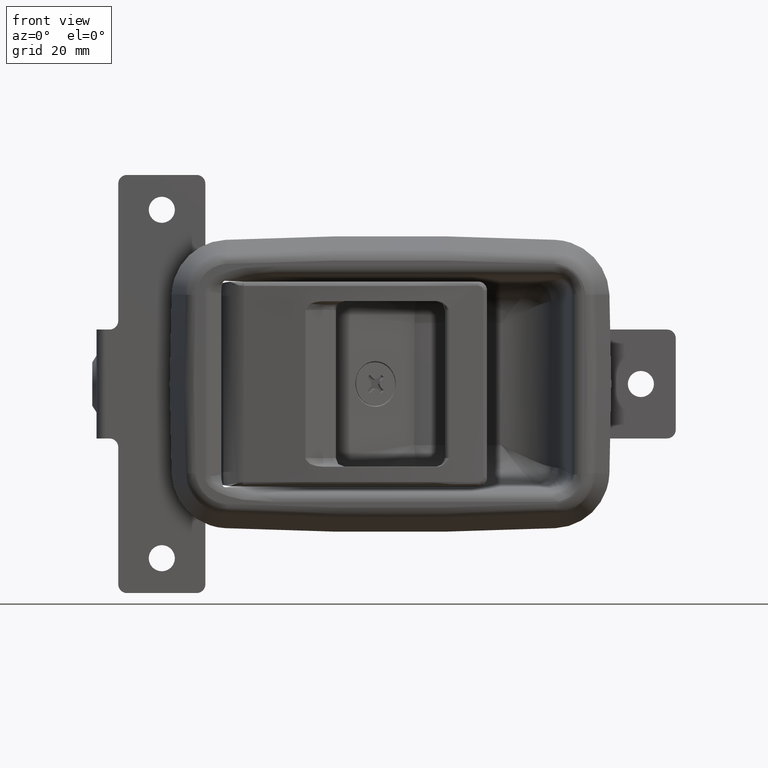
[diagram: clean part render]
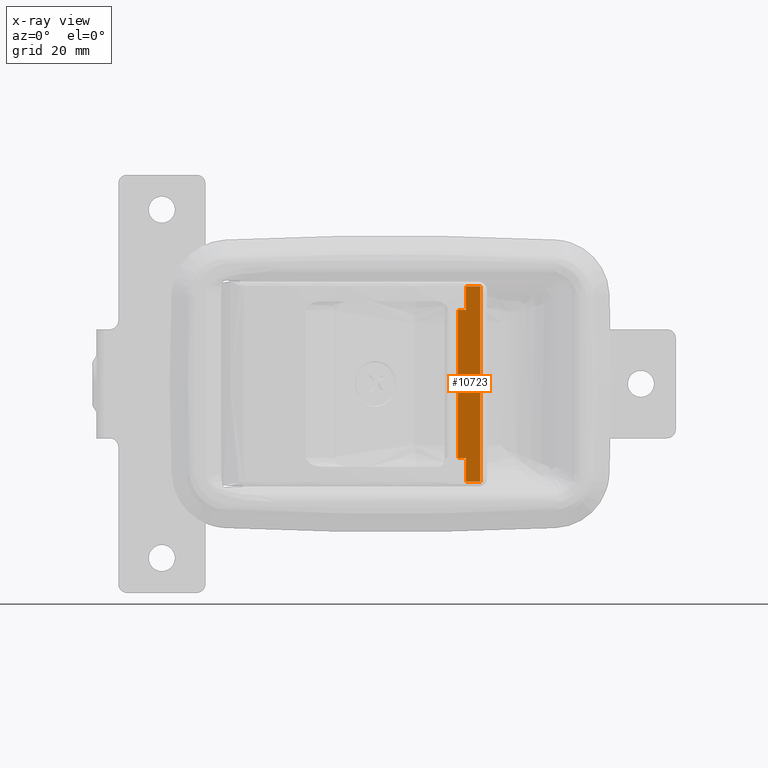
[diagram: x-ray — body ghosted, one internal face saturated and labeled with its STEP entity id]
A machine part, front view, then the same camera in x-ray: the body is ghosted and one INTERNAL B-rep face — a face not visible from any outside direction — is saturated and labeled: STEP entity #10723.
In plain terms, the highlighted face is a freeform B-spline surface patch.
Its self-contained STEP definition (entity closure, byte-faithful):
#5414=CARTESIAN_POINT('',(17.303637721595049,-4.0,-17.0));
#5415=VERTEX_POINT('',#5414);
#6699=CARTESIAN_POINT('',(17.303637721595049,-4.0,17.0));
#6700=VERTEX_POINT('',#6699);
#7289=CARTESIAN_POINT('',(17.303637721595049,-4.0,22.392696373863750));
#7290=VERTEX_POINT('',#7289);
#7339=CARTESIAN_POINT('',(20.611658611467998,-4.0,22.392696373863750));
#7340=VERTEX_POINT('',#7339);
#7351=CARTESIAN_POINT('',(17.303637721595049,-4.0,22.392696373863750));
#7352=CARTESIAN_POINT('',(20.611658611467998,-4.0,22.392696373863750));
#7353=QUASI_UNIFORM_CURVE('',1,(#7351,#7352),.UNSPECIFIED.,.F.,.U.);
#7354=EDGE_CURVE('',#7290,#7340,#7353,.T.);
#7390=CARTESIAN_POINT('',(20.661000000000001,-4.0,22.366025403784398));
#7391=VERTEX_POINT('',#7390);
#7403=CARTESIAN_POINT('',(20.611658611467998,-4.0,22.392696373863750));
#7404=CARTESIAN_POINT('',(20.661000000000001,-4.0,22.366025403784398));
#7405=QUASI_UNIFORM_CURVE('',1,(#7403,#7404),.UNSPECIFIED.,.F.,.U.);
#7406=EDGE_CURVE('',#7340,#7391,#7405,.T.);
#8107=CARTESIAN_POINT('',(17.303637721595049,-4.0,-22.392696373863750));
#8108=VERTEX_POINT('',#8107);
#8157=CARTESIAN_POINT('',(20.611658611468201,-4.0,-22.392696373863650));
#8158=VERTEX_POINT('',#8157);
#8177=CARTESIAN_POINT('',(20.611658611468201,-4.0,-22.392696373863650));
#8178=CARTESIAN_POINT('',(17.303637721595049,-4.0,-22.392696373863750));
#8179=QUASI_UNIFORM_CURVE('',1,(#8177,#8178),.UNSPECIFIED.,.F.,.U.);
#8180=EDGE_CURVE('',#8158,#8108,#8179,.T.);
#8227=CARTESIAN_POINT('',(20.661000000000001,-4.0,-22.366025403784398));
#8228=VERTEX_POINT('',#8227);
#8229=CARTESIAN_POINT('',(20.661000000000001,-4.0,-22.366025403784398));
#8230=CARTESIAN_POINT('',(20.611658611468201,-4.0,-22.392696373863650));
#8231=QUASI_UNIFORM_CURVE('',1,(#8229,#8230),.UNSPECIFIED.,.F.,.U.);
#8232=EDGE_CURVE('',#8228,#8158,#8231,.T.);
#8831=CARTESIAN_POINT('',(15.461000000000000,-4.0,-17.0));
#8832=VERTEX_POINT('',#8831);
#8833=CARTESIAN_POINT('',(17.303637721595049,-4.0,-17.0));
#8834=CARTESIAN_POINT('',(15.461000000000000,-4.0,-17.0));
#8835=QUASI_UNIFORM_CURVE('',1,(#8833,#8834),.UNSPECIFIED.,.F.,.U.);
#8836=EDGE_CURVE('',#5415,#8832,#8835,.T.);
#9176=CARTESIAN_POINT('',(15.461000000000000,-4.0,17.0));
#9177=VERTEX_POINT('',#9176);
#9217=CARTESIAN_POINT('',(15.461000000000000,-4.0,17.0));
#9218=CARTESIAN_POINT('',(17.303637721595049,-4.0,17.0));
#9219=QUASI_UNIFORM_CURVE('',1,(#9217,#9218),.UNSPECIFIED.,.F.,.U.);
#9220=EDGE_CURVE('',#9177,#6700,#9219,.T.);
#10377=CARTESIAN_POINT('',(15.461000000000000,-4.0,17.0));
#10378=CARTESIAN_POINT('',(15.461000000000000,-4.0,-17.0));
#10379=QUASI_UNIFORM_CURVE('',1,(#10377,#10378),.UNSPECIFIED.,.F.,.U.);
#10380=EDGE_CURVE('',#9177,#8832,#10379,.T.);
#10687=CARTESIAN_POINT('',(20.661000000000001,-4.0,-22.366025403784398));
#10688=CARTESIAN_POINT('',(20.661000000000001,-4.0,22.366025403784398));
#10689=QUASI_UNIFORM_CURVE('',1,(#10687,#10688),.UNSPECIFIED.,.F.,.U.);
#10690=EDGE_CURVE('',#8228,#7391,#10689,.T.);
#10698=CARTESIAN_POINT('',(15.201260486559629,-4.0,24.629726654809961));
#10699=CARTESIAN_POINT('',(15.201260486559629,-4.0,-24.629727856047801));
#10700=CARTESIAN_POINT('',(20.920739327473878,-4.0,24.629726654809961));
#10701=CARTESIAN_POINT('',(20.920739327473878,-4.0,-24.629727856047801));
#10702=B_SPLINE_SURFACE_WITH_KNOTS('',1,1,((#10698,#10700),(#10699,#10701)),.UNSPECIFIED.,.F.,.F.,.U.,(2,2),(2,2),(0.041708334948495,0.958291687403247),(0.041708411307633,0.958291558890045),.UNSPECIFIED.);
#10703=ORIENTED_EDGE('',*,*,#7354,.T.);
#10704=ORIENTED_EDGE('',*,*,#7406,.T.);
#10705=ORIENTED_EDGE('',*,*,#10690,.F.);
#10706=ORIENTED_EDGE('',*,*,#8232,.T.);
#10707=ORIENTED_EDGE('',*,*,#8180,.T.);
#10708=CARTESIAN_POINT('',(17.303637721595049,-4.0,-22.392696373863750));
#10709=CARTESIAN_POINT('',(17.303637721595049,-4.0,-17.0));
#10710=QUASI_UNIFORM_CURVE('',1,(#10708,#10709),.UNSPECIFIED.,.F.,.U.);
#10711=EDGE_CURVE('',#8108,#5415,#10710,.T.);
#10712=ORIENTED_EDGE('',*,*,#10711,.T.);
#10713=ORIENTED_EDGE('',*,*,#8836,.T.);
#10714=ORIENTED_EDGE('',*,*,#10380,.F.);
#10715=ORIENTED_EDGE('',*,*,#9220,.T.);
#10716=CARTESIAN_POINT('',(17.303637721595049,-4.0,17.0));
#10717=CARTESIAN_POINT('',(17.303637721595049,-4.0,22.392696373863750));
#10718=QUASI_UNIFORM_CURVE('',1,(#10716,#10717),.UNSPECIFIED.,.F.,.U.);
#10719=EDGE_CURVE('',#6700,#7290,#10718,.T.);
#10720=ORIENTED_EDGE('',*,*,#10719,.T.);
#10721=EDGE_LOOP('',(#10703,#10704,#10705,#10706,#10707,#10712,#10713,#10714,#10715,#10720));
#10722=FACE_OUTER_BOUND('',#10721,.T.);
#10723=ADVANCED_FACE('',(#10722),#10702,.F.);